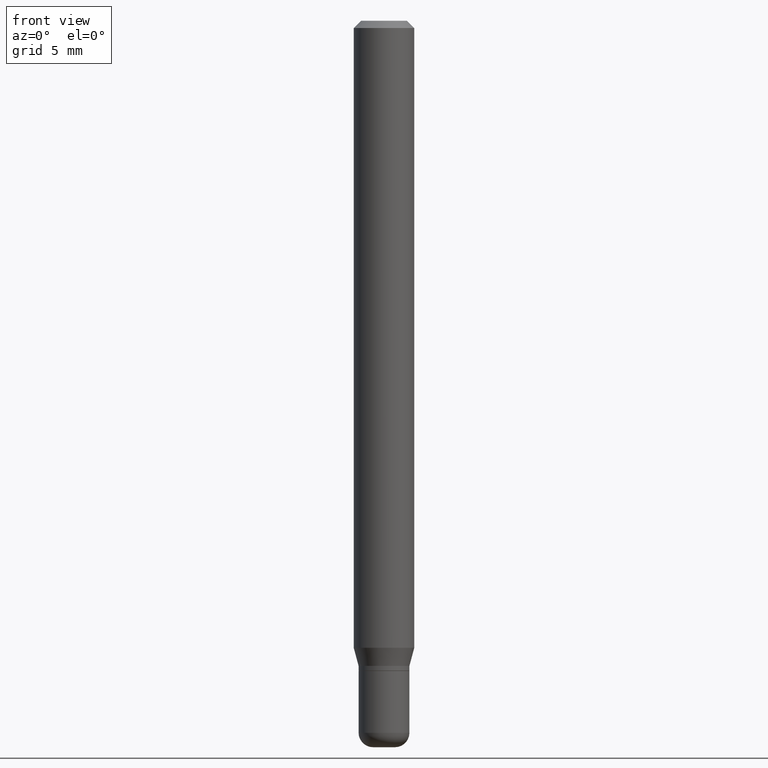
[diagram: clean part render]
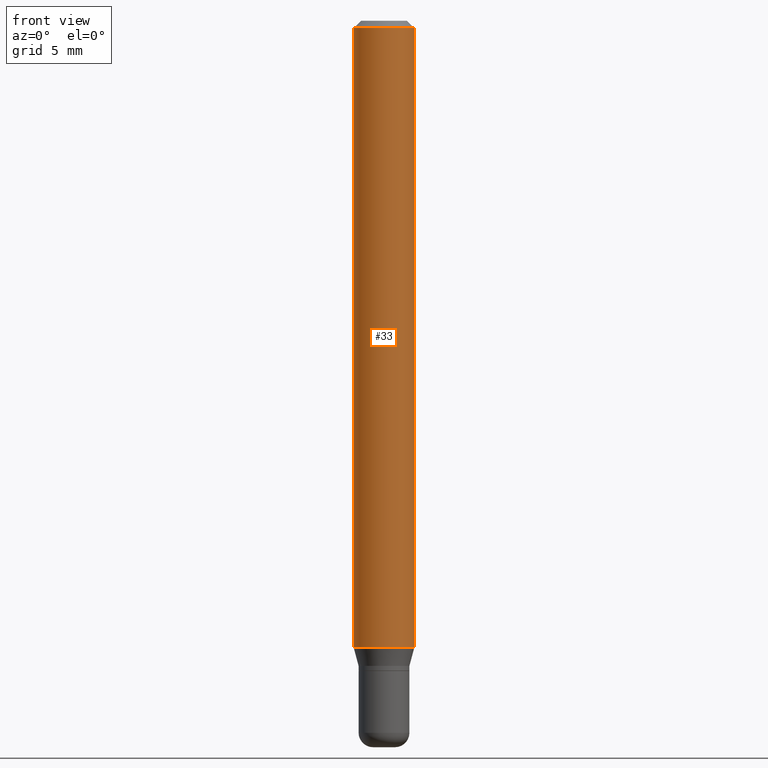
[diagram: same view with one face highlighted and labeled with its STEP entity id]
A machine part, front view. The second image highlights one B-rep face of the part: STEP entity #33.
In plain terms, the highlighted cylindrical surface (edge-blend (fillet) strip) has radius 1.5875 mm, axis along (-0, 0, 1).
Its self-contained STEP definition (entity closure, byte-faithful):
#9 = EDGE_CURVE ( 'NONE', #229, #146, #83, .T. ) ;
#33 = ADVANCED_FACE ( 'NONE', ( #287 ), #75, .T. ) ;
#41 = DIRECTION ( 'NONE',  ( 1.000000000000000000, -6.982962677686266711E-15, 4.876176775795935793E-29 ) ) ;
#67 = VERTEX_POINT ( 'NONE', #163 ) ;
#75 = CYLINDRICAL_SURFACE ( 'NONE', #113, 0.06250000000000000000 ) ;
#80 = EDGE_CURVE ( 'NONE', #146, #152, #478, .T. ) ;
#83 = LINE ( 'NONE', #359, #239 ) ;
#113 = AXIS2_PLACEMENT_3D ( 'NONE', #516, #241, #41 ) ;
#124 = DIRECTION ( 'NONE',  ( -2.445468806185136877E-29, 3.491481338843145188E-15, 1.000000000000000000 ) ) ;
#146 = VERTEX_POINT ( 'NONE', #212 ) ;
#147 = DIRECTION ( 'NONE',  ( 1.000000000000000000, -6.982962677686262766E-15, 0.000000000000000000 ) ) ;
#152 = VERTEX_POINT ( 'NONE', #174 ) ;
#163 = CARTESIAN_POINT ( 'NONE',  ( 0.06250000000000000000, -4.956784453192051541E-15, -1.294679491924312087 ) ) ;
#169 = DIRECTION ( 'NONE',  ( -2.445468806185136597E-29, 3.491481338843145583E-15, 1.000000000000000000 ) ) ;
#174 = CARTESIAN_POINT ( 'NONE',  ( 0.06250000000000000000, -4.888073874380378612E-16, -0.01499999999999970281 ) ) ;
#212 = CARTESIAN_POINT ( 'NONE',  ( -0.06250000000000000000, -1.842271543109590267E-15, -0.01499999999999970281 ) ) ;
#220 = DIRECTION ( 'NONE',  ( 1.000000000000000000, -6.982962677686266711E-15, 0.000000000000000000 ) ) ;
#221 = AXIS2_PLACEMENT_3D ( 'NONE', #223, #508, #147 ) ;
#223 = CARTESIAN_POINT ( 'NONE',  ( 3.166098311508526589E-29, -4.520349285836659871E-15, -1.294679491924312087 ) ) ;
#226 = VECTOR ( 'NONE', #124, 39.37007874015748143 ) ;
#229 = VERTEX_POINT ( 'NONE', #419 ) ;
#231 = ORIENTED_EDGE ( 'NONE', *, *, #9, .F. ) ;
#239 = VECTOR ( 'NONE', #318, 39.37007874015748143 ) ;
#241 = DIRECTION ( 'NONE',  ( -2.445468806185136597E-29, 3.491481338843145583E-15, 1.000000000000000000 ) ) ;
#246 = EDGE_CURVE ( 'NONE', #229, #67, #247, .T. ) ;
#247 = CIRCLE ( 'NONE', #221, 0.06250000000000000000 ) ;
#265 = AXIS2_PLACEMENT_3D ( 'NONE', #461, #169, #220 ) ;
#287 = FACE_OUTER_BOUND ( 'NONE', #392, .T. ) ;
#308 = ORIENTED_EDGE ( 'NONE', *, *, #80, .F. ) ;
#318 = DIRECTION ( 'NONE',  ( -2.445468806185136877E-29, 3.491481338843145188E-15, 1.000000000000000000 ) ) ;
#323 = LINE ( 'NONE', #445, #226 ) ;
#359 = CARTESIAN_POINT ( 'NONE',  ( -0.06250000000000000000, 4.440892098500626162E-16, -3.074334431409316114E-30 ) ) ;
#386 = ORIENTED_EDGE ( 'NONE', *, *, #246, .T. ) ;
#388 = ORIENTED_EDGE ( 'NONE', *, *, #450, .T. ) ;
#392 = EDGE_LOOP ( 'NONE', ( #231, #386, #388, #308 ) ) ;
#419 = CARTESIAN_POINT ( 'NONE',  ( -0.06250000000000000000, -4.076260075986598044E-15, -1.294679491924312087 ) ) ;
#445 = CARTESIAN_POINT ( 'NONE',  ( 0.06250000000000000000, -4.364351673553916694E-16, 3.047610484872459871E-30 ) ) ;
#450 = EDGE_CURVE ( 'NONE', #67, #152, #323, .T. ) ;
#461 = CARTESIAN_POINT ( 'NONE',  ( 3.668203209277632395E-31, -5.237222008264614861E-17, -0.01499999999999970281 ) ) ;
#478 = CIRCLE ( 'NONE', #265, 0.06250000000000000000 ) ;
#508 = DIRECTION ( 'NONE',  ( -2.445468806185136597E-29, 3.491481338843145583E-15, 1.000000000000000000 ) ) ;
#516 = CARTESIAN_POINT ( 'NONE',  ( 0.000000000000000000, 0.000000000000000000, 0.000000000000000000 ) ) ;